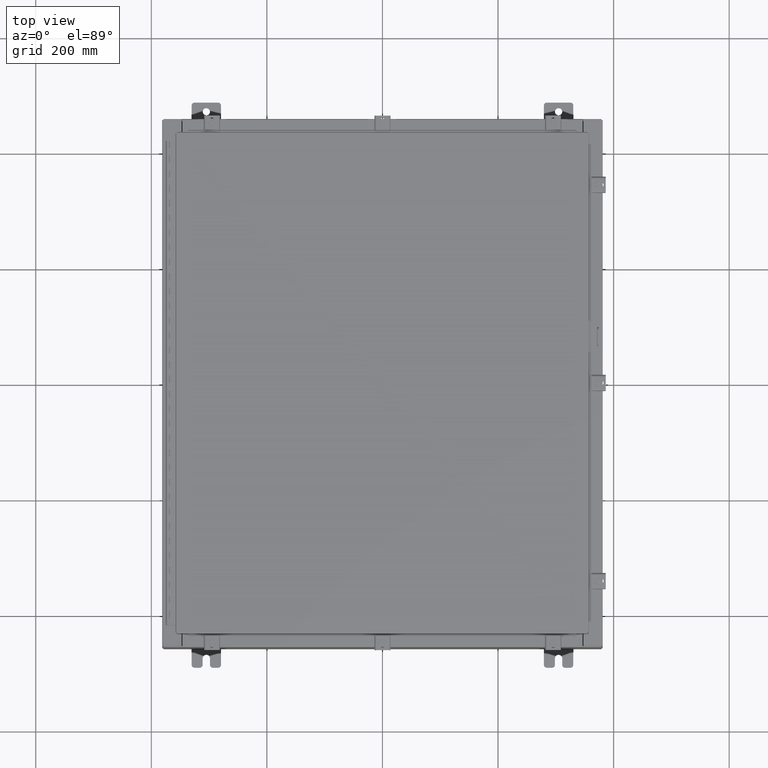
[diagram: clean part render]
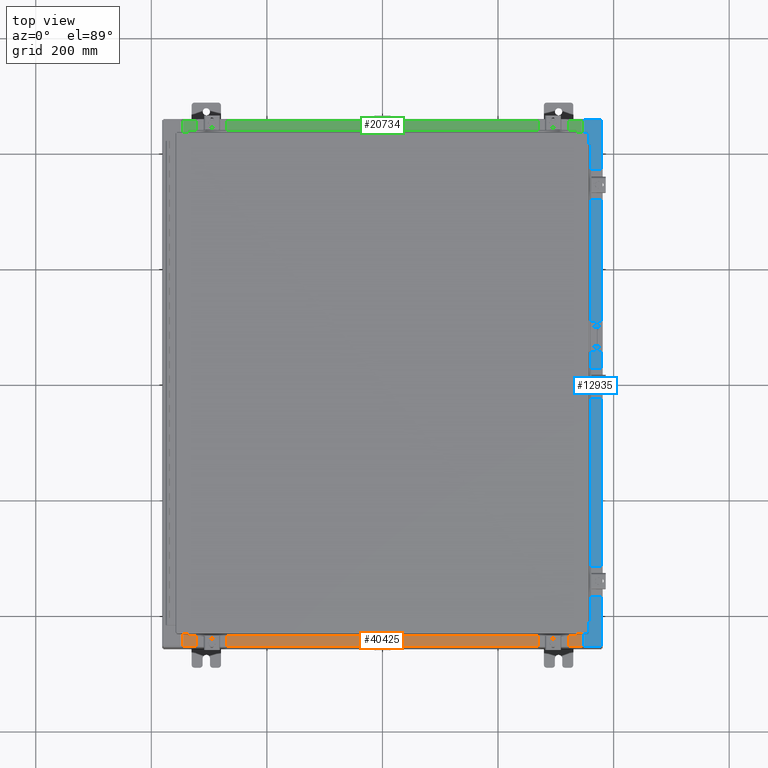
[diagram: same view with three faces highlighted in distinct colors, each labeled with its STEP entity id]
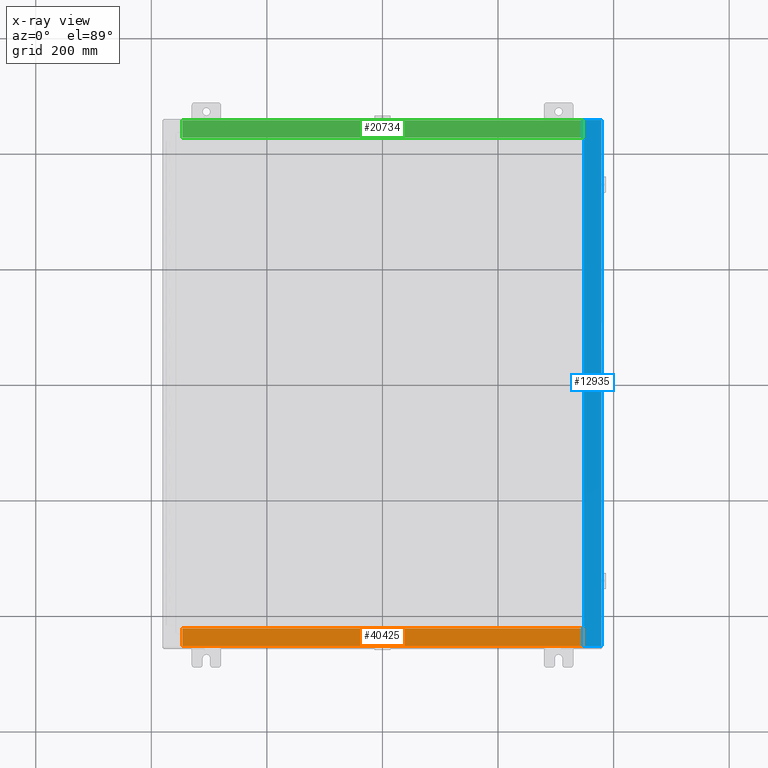
[diagram: x-ray of the same camera — body ghosted, the three highlighted faces saturated]
A machine part, top view with three faces highlighted in distinct colors.
The next image is the same camera in x-ray (body ghosted, the three faces saturated) — at least one of them is partly hidden behind the body in this view.
Their STEP definitions:

[orange] entity #40425 — the highlighted planar face has unit normal (-0, -0, 1).
#757 = DIRECTION ( 'NONE',  ( -0.0000000000000000000, -1.000000000000000000, 3.566381192773190000E-015 ) ) ;
#1760 = CARTESIAN_POINT ( 'NONE',  ( -13.63719999999999800, -0.07469999999999973900, 4.000000000000000000 ) ) ;
#2917 = DIRECTION ( 'NONE',  ( -1.000000000000000000, 2.003232330437526000E-017, -7.144290108027600900E-032 ) ) ;
#3444 = EDGE_CURVE ( 'NONE', #27526, #3976, #25503, .T. ) ;
#3976 = VERTEX_POINT ( 'NONE', #36598 ) ;
#4018 = VERTEX_POINT ( 'NONE', #16685 ) ;
#5298 = VECTOR ( 'NONE', #14962, 39.37007874015748100 ) ;
#6133 = CARTESIAN_POINT ( 'NONE',  ( -1.756834753793995900E-018, -0.08770000000000000000, 4.000000000000000900 ) ) ;
#6949 = PLANE ( 'NONE',  #31343 ) ;
#8020 = LINE ( 'NONE', #36622, #24688 ) ;
#11457 = ORIENTED_EDGE ( 'NONE', *, *, #13467, .F. ) ;
#12029 = ORIENTED_EDGE ( 'NONE', *, *, #20580, .T. ) ;
#12905 = CARTESIAN_POINT ( 'NONE',  ( -13.63719999999999800, -1.287299999999999200, 4.000000000000004400 ) ) ;
#13467 = EDGE_CURVE ( 'NONE', #24205, #4018, #39776, .T. ) ;
#14962 = DIRECTION ( 'NONE',  ( -0.0000000000000000000, 1.000000000000000000, -3.566381192773190000E-015 ) ) ;
#16685 = CARTESIAN_POINT ( 'NONE',  ( -13.63719999999999800, -0.08770000000000000000, 4.000000000000000000 ) ) ;
#17326 = CARTESIAN_POINT ( 'NONE',  ( 13.63720000000000400, -1.300299999999999800, 4.000000000000004400 ) ) ;
#17849 = LINE ( 'NONE', #6133, #18888 ) ;
#18888 = VECTOR ( 'NONE', #2917, 39.37007874015748100 ) ;
#20327 = DIRECTION ( 'NONE',  ( 0.0000000000000000000, -1.000000000000000000, 3.566381192773190000E-015 ) ) ;
#20580 = EDGE_CURVE ( 'NONE', #27526, #4018, #17849, .T. ) ;
#24205 = VERTEX_POINT ( 'NONE', #12905 ) ;
#24222 = EDGE_LOOP ( 'NONE', ( #11457, #29889, #33480, #12029 ) ) ;
#24688 = VECTOR ( 'NONE', #26537, 39.37007874015748100 ) ;
#25503 = LINE ( 'NONE', #17326, #33344 ) ;
#26537 = DIRECTION ( 'NONE',  ( -1.000000000000000000, 0.0000000000000000000, 0.0000000000000000000 ) ) ;
#26739 = FACE_OUTER_BOUND ( 'NONE', #24222, .T. ) ;
#27345 = CARTESIAN_POINT ( 'NONE',  ( 13.63720000000000400, -0.08769999999999965300, 4.000000000000000000 ) ) ;
#27526 = VERTEX_POINT ( 'NONE', #27345 ) ;
#29889 = ORIENTED_EDGE ( 'NONE', *, *, #39906, .F. ) ;
#30283 = CARTESIAN_POINT ( 'NONE',  ( 0.0000000000000000000, 1.425992975200418500E-014, 4.000000000000000000 ) ) ;
#31343 = AXIS2_PLACEMENT_3D ( 'NONE', #30283, #40364, #20327 ) ;
#33344 = VECTOR ( 'NONE', #757, 39.37007874015748100 ) ;
#33480 = ORIENTED_EDGE ( 'NONE', *, *, #3444, .F. ) ;
#36598 = CARTESIAN_POINT ( 'NONE',  ( 13.63720000000000400, -1.287299999999999900, 4.000000000000004400 ) ) ;
#36622 = CARTESIAN_POINT ( 'NONE',  ( 13.63720000000000400, -1.287299999999999900, 4.000000000000003600 ) ) ;
#39776 = LINE ( 'NONE', #1760, #5298 ) ;
#39906 = EDGE_CURVE ( 'NONE', #3976, #24205, #8020, .T. ) ;
#40364 = DIRECTION ( 'NONE',  ( 0.0000000000000000000, 3.566381192773190000E-015, 1.000000000000000000 ) ) ;
#40425 = ADVANCED_FACE ( 'NONE', ( #26739 ), #6949, .T. ) ;

[blue] entity #12935 — the highlighted planar face has unit normal (-0, 0, -1).
#95 = CARTESIAN_POINT ( 'NONE',  ( 13.75005000000002800, 16.63110000000000000, 7.925300000000008900 ) ) ;
#437 = VECTOR ( 'NONE', #28163, 39.37007874015748100 ) ;
#526 = EDGE_CURVE ( 'NONE', #36722, #5574, #17862, .T. ) ;
#595 = LINE ( 'NONE', #7188, #8413 ) ;
#808 = VECTOR ( 'NONE', #6674, 39.37007874015748100 ) ;
#1398 = EDGE_CURVE ( 'NONE', #34269, #27681, #29849, .T. ) ;
#2035 = VERTEX_POINT ( 'NONE', #33932 ) ;
#2236 = EDGE_CURVE ( 'NONE', #9814, #36722, #25068, .T. ) ;
#3556 = CARTESIAN_POINT ( 'NONE',  ( 13.71270000000003000, -16.59375000000000000, 7.925300000000008900 ) ) ;
#3616 = CARTESIAN_POINT ( 'NONE',  ( 13.75005000000002800, 16.63110000000000000, 7.925300000000006200 ) ) ;
#3906 = CARTESIAN_POINT ( 'NONE',  ( 13.75005000000002800, 16.61242500000000200, 7.925300000000008900 ) ) ;
#4672 = ORIENTED_EDGE ( 'NONE', *, *, #42286, .T. ) ;
#5574 = VERTEX_POINT ( 'NONE', #41687 ) ;
#5994 = LINE ( 'NONE', #42104, #32610 ) ;
#6396 = FACE_OUTER_BOUND ( 'NONE', #39962, .T. ) ;
#6674 = DIRECTION ( 'NONE',  ( -1.000000000000000000, 4.340572780399910900E-014, 0.0000000000000000000 ) ) ;
#6902 = CARTESIAN_POINT ( 'NONE',  ( 13.69970000000002800, -17.92530000000000000, 7.925300000000007100 ) ) ;
#7188 = CARTESIAN_POINT ( 'NONE',  ( 13.69970000000002800, -2.954887266783073000E-030, 7.925300000000007100 ) ) ;
#7276 = ORIENTED_EDGE ( 'NONE', *, *, #2236, .F. ) ;
#7283 = DIRECTION ( 'NONE',  ( 1.000000000000000000, 0.0000000000000000000, 0.0000000000000000000 ) ) ;
#8012 = ORIENTED_EDGE ( 'NONE', *, *, #15636, .T. ) ;
#8413 = VECTOR ( 'NONE', #30489, 39.37007874015748100 ) ;
#8672 = DIRECTION ( 'NONE',  ( 1.000000000000000000, 0.0000000000000000000, 0.0000000000000000000 ) ) ;
#9291 = LINE ( 'NONE', #24783, #437 ) ;
#9721 = ORIENTED_EDGE ( 'NONE', *, *, #13758, .T. ) ;
#9814 = VERTEX_POINT ( 'NONE', #36656 ) ;
#10733 = ORIENTED_EDGE ( 'NONE', *, *, #1398, .F. ) ;
#10853 = AXIS2_PLACEMENT_3D ( 'NONE', #3906, #27212, #7283 ) ;
#11527 = EDGE_CURVE ( 'NONE', #37334, #27681, #30438, .T. ) ;
#12603 = CARTESIAN_POINT ( 'NONE',  ( 13.69970000000002800, 16.63110000000000400, 7.925300000000007100 ) ) ;
#12791 = DIRECTION ( 'NONE',  ( -1.000000000000000000, 0.0000000000000000000, 6.241167087353087800E-015 ) ) ;
#12935 = ADVANCED_FACE ( 'NONE', ( #6396 ), #25248, .F. ) ;
#13758 = EDGE_CURVE ( 'NONE', #34269, #2035, #20373, .T. ) ;
#14457 = CIRCLE ( 'NONE', #10853, 0.01867499999999949400 ) ;
#15027 = DIRECTION ( 'NONE',  ( 6.241167087353086200E-015, 0.0000000000000000000, 1.000000000000000000 ) ) ;
#15153 = VERTEX_POINT ( 'NONE', #17677 ) ;
#15288 = DIRECTION ( 'NONE',  ( -1.000000000000000000, 0.0000000000000000000, 6.241167087353086200E-015 ) ) ;
#15629 = CARTESIAN_POINT ( 'NONE',  ( 13.75005000000002800, 16.59375000000000000, 7.925300000000006200 ) ) ;
#15636 = EDGE_CURVE ( 'NONE', #2035, #24127, #9291, .T. ) ;
#16071 = CARTESIAN_POINT ( 'NONE',  ( 13.69970000000002800, -16.63110000000000400, 7.925300000000008900 ) ) ;
#17677 = CARTESIAN_POINT ( 'NONE',  ( 13.69970000000002800, -16.63110000000000400, 7.925300000000007100 ) ) ;
#17679 = ORIENTED_EDGE ( 'NONE', *, *, #19706, .F. ) ;
#17862 = LINE ( 'NONE', #24590, #24678 ) ;
#18787 = ORIENTED_EDGE ( 'NONE', *, *, #32658, .F. ) ;
#19271 = VECTOR ( 'NONE', #20109, 39.37007874015748100 ) ;
#19323 = EDGE_CURVE ( 'NONE', #27390, #24127, #27395, .T. ) ;
#19379 = LINE ( 'NONE', #16071, #38257 ) ;
#19706 = EDGE_CURVE ( 'NONE', #27973, #24557, #5994, .T. ) ;
#20109 = DIRECTION ( 'NONE',  ( -0.0000000000000000000, 1.000000000000000000, -0.0000000000000000000 ) ) ;
#20373 = LINE ( 'NONE', #30003, #36103 ) ;
#20997 = DIRECTION ( 'NONE',  ( -0.0000000000000000000, -1.000000000000000000, -0.0000000000000000000 ) ) ;
#21540 = VECTOR ( 'NONE', #42541, 39.37007874015748100 ) ;
#24127 = VERTEX_POINT ( 'NONE', #12603 ) ;
#24557 = VERTEX_POINT ( 'NONE', #15629 ) ;
#24590 = CARTESIAN_POINT ( 'NONE',  ( 13.75005000000002800, -16.59375000000000000, 7.925300000000008900 ) ) ;
#24678 = VECTOR ( 'NONE', #27957, 39.37007874015748100 ) ;
#24758 = ORIENTED_EDGE ( 'NONE', *, *, #526, .F. ) ;
#24783 = CARTESIAN_POINT ( 'NONE',  ( 13.69970000000002800, -2.954887266783073000E-030, 7.925300000000007100 ) ) ;
#25068 = CIRCLE ( 'NONE', #29033, 0.01867499999999949400 ) ;
#25080 = CARTESIAN_POINT ( 'NONE',  ( 14.91230000000002700, 17.92530000000000000, 7.925300000000000000 ) ) ;
#25248 = PLANE ( 'NONE',  #28909 ) ;
#25724 = EDGE_CURVE ( 'NONE', #24557, #27390, #14457, .T. ) ;
#25860 = CARTESIAN_POINT ( 'NONE',  ( 4.972393517341156900E-014, -17.92530000000000000, 7.925300000000092400 ) ) ;
#27212 = DIRECTION ( 'NONE',  ( 6.241167087353086200E-015, 0.0000000000000000000, 1.000000000000000000 ) ) ;
#27390 = VERTEX_POINT ( 'NONE', #3616 ) ;
#27395 = LINE ( 'NONE', #95, #808 ) ;
#27681 = VERTEX_POINT ( 'NONE', #28224 ) ;
#27957 = DIRECTION ( 'NONE',  ( -1.000000000000000000, 0.0000000000000000000, 0.0000000000000000000 ) ) ;
#27973 = VERTEX_POINT ( 'NONE', #37582 ) ;
#28163 = DIRECTION ( 'NONE',  ( -2.156899250920150100E-031, -1.000000000000000000, 1.346156861557936900E-045 ) ) ;
#28224 = CARTESIAN_POINT ( 'NONE',  ( 14.91230000000002700, -17.92530000000000000, 7.925300000000000000 ) ) ;
#28502 = ORIENTED_EDGE ( 'NONE', *, *, #29583, .F. ) ;
#28909 = AXIS2_PLACEMENT_3D ( 'NONE', #35211, #35363, #15288 ) ;
#29033 = AXIS2_PLACEMENT_3D ( 'NONE', #35079, #15027, #38445 ) ;
#29243 = LINE ( 'NONE', #3556, #19271 ) ;
#29583 = EDGE_CURVE ( 'NONE', #15153, #9814, #19379, .T. ) ;
#29849 = LINE ( 'NONE', #41050, #30896 ) ;
#30003 = CARTESIAN_POINT ( 'NONE',  ( 4.972393517341156900E-014, 17.92530000000000000, 7.925300000000092400 ) ) ;
#30284 = CARTESIAN_POINT ( 'NONE',  ( 13.75005000000002800, -16.59375000000000000, 7.925300000000006200 ) ) ;
#30438 = LINE ( 'NONE', #25860, #21540 ) ;
#30489 = DIRECTION ( 'NONE',  ( -2.156899250920150100E-031, -1.000000000000000000, 1.346156861557936900E-045 ) ) ;
#30896 = VECTOR ( 'NONE', #20997, 39.37007874015748100 ) ;
#32240 = ORIENTED_EDGE ( 'NONE', *, *, #19323, .F. ) ;
#32610 = VECTOR ( 'NONE', #8672, 39.37007874015748100 ) ;
#32658 = EDGE_CURVE ( 'NONE', #5574, #27973, #29243, .T. ) ;
#33587 = ORIENTED_EDGE ( 'NONE', *, *, #25724, .F. ) ;
#33932 = CARTESIAN_POINT ( 'NONE',  ( 13.69970000000002800, 17.92530000000000000, 7.925300000000007100 ) ) ;
#34269 = VERTEX_POINT ( 'NONE', #25080 ) ;
#35079 = CARTESIAN_POINT ( 'NONE',  ( 13.75005000000002800, -16.61242500000000200, 7.925300000000008900 ) ) ;
#35211 = CARTESIAN_POINT ( 'NONE',  ( 4.972393517341156900E-014, 0.0000000000000000000, 7.925300000000092400 ) ) ;
#35363 = DIRECTION ( 'NONE',  ( -6.241167087353086200E-015, 0.0000000000000000000, -1.000000000000000000 ) ) ;
#36103 = VECTOR ( 'NONE', #12791, 39.37007874015748100 ) ;
#36656 = CARTESIAN_POINT ( 'NONE',  ( 13.75005000000002800, -16.63110000000000000, 7.925300000000006200 ) ) ;
#36722 = VERTEX_POINT ( 'NONE', #30284 ) ;
#37334 = VERTEX_POINT ( 'NONE', #6902 ) ;
#37582 = CARTESIAN_POINT ( 'NONE',  ( 13.71270000000003000, 16.59375000000000000, 7.925300000000008900 ) ) ;
#38257 = VECTOR ( 'NONE', #39486, 39.37007874015748100 ) ;
#38445 = DIRECTION ( 'NONE',  ( 1.000000000000000000, 0.0000000000000000000, 0.0000000000000000000 ) ) ;
#39486 = DIRECTION ( 'NONE',  ( 1.000000000000000000, 4.340572780399910900E-014, 0.0000000000000000000 ) ) ;
#39962 = EDGE_LOOP ( 'NONE', ( #28502, #4672, #40781, #10733, #9721, #8012, #32240, #33587, #17679, #18787, #24758, #7276 ) ) ;
#40781 = ORIENTED_EDGE ( 'NONE', *, *, #11527, .T. ) ;
#41050 = CARTESIAN_POINT ( 'NONE',  ( 14.91230000000002700, -17.92530000000000000, 7.925300000000000000 ) ) ;
#41687 = CARTESIAN_POINT ( 'NONE',  ( 13.71270000000003000, -16.59375000000000000, 7.925300000000008900 ) ) ;
#42104 = CARTESIAN_POINT ( 'NONE',  ( 13.71270000000003000, 16.59375000000000000, 7.925300000000008900 ) ) ;
#42286 = EDGE_CURVE ( 'NONE', #15153, #37334, #595, .T. ) ;
#42541 = DIRECTION ( 'NONE',  ( 1.000000000000000000, 2.717614574405843200E-032, -6.241167087353087800E-015 ) ) ;

[green] entity #20734 — the highlighted planar face has unit normal (0, 0, 1).
#1640 = EDGE_LOOP ( 'NONE', ( #34869, #26170, #10788, #18223 ) ) ;
#3768 = DIRECTION ( 'NONE',  ( 0.0000000000000000000, 3.566381192773190000E-015, 1.000000000000000000 ) ) ;
#3981 = CARTESIAN_POINT ( 'NONE',  ( -1.756834753793995900E-018, -0.08770000000000000000, 4.000000000000000900 ) ) ;
#4743 = CARTESIAN_POINT ( 'NONE',  ( -13.63719999999999800, -0.08770000000000000000, 4.000000000000000000 ) ) ;
#4921 = LINE ( 'NONE', #3981, #12712 ) ;
#6832 = DIRECTION ( 'NONE',  ( -0.0000000000000000000, -1.000000000000000000, 3.566381192773190000E-015 ) ) ;
#7343 = DIRECTION ( 'NONE',  ( -1.000000000000000000, 2.003232330437526000E-017, -7.144290108027600900E-032 ) ) ;
#10168 = CARTESIAN_POINT ( 'NONE',  ( 13.63720000000000400, -1.300299999999999800, 4.000000000000004400 ) ) ;
#10325 = CARTESIAN_POINT ( 'NONE',  ( 0.0000000000000000000, 1.425992975200418500E-014, 4.000000000000000000 ) ) ;
#10788 = ORIENTED_EDGE ( 'NONE', *, *, #42852, .F. ) ;
#12712 = VECTOR ( 'NONE', #7343, 39.37007874015748100 ) ;
#13057 = VECTOR ( 'NONE', #14819, 39.37007874015748100 ) ;
#13403 = VERTEX_POINT ( 'NONE', #34580 ) ;
#14819 = DIRECTION ( 'NONE',  ( -1.000000000000000000, 0.0000000000000000000, 0.0000000000000000000 ) ) ;
#15091 = LINE ( 'NONE', #10168, #39707 ) ;
#16105 = VECTOR ( 'NONE', #38779, 39.37007874015748100 ) ;
#18223 = ORIENTED_EDGE ( 'NONE', *, *, #39442, .T. ) ;
#20734 = ADVANCED_FACE ( 'NONE', ( #21514 ), #40391, .T. ) ;
#21280 = VERTEX_POINT ( 'NONE', #33340 ) ;
#21514 = FACE_OUTER_BOUND ( 'NONE', #1640, .T. ) ;
#22135 = AXIS2_PLACEMENT_3D ( 'NONE', #10325, #3768, #27091 ) ;
#22148 = CARTESIAN_POINT ( 'NONE',  ( 13.63720000000000400, -1.287299999999999900, 4.000000000000004400 ) ) ;
#24775 = CARTESIAN_POINT ( 'NONE',  ( 13.63720000000000400, -1.287299999999999900, 4.000000000000003600 ) ) ;
#26170 = ORIENTED_EDGE ( 'NONE', *, *, #42454, .F. ) ;
#27091 = DIRECTION ( 'NONE',  ( 0.0000000000000000000, -1.000000000000000000, 3.566381192773190000E-015 ) ) ;
#28734 = LINE ( 'NONE', #24775, #13057 ) ;
#31159 = VERTEX_POINT ( 'NONE', #22148 ) ;
#32037 = CARTESIAN_POINT ( 'NONE',  ( -13.63719999999999800, -0.07469999999999973900, 4.000000000000000000 ) ) ;
#33340 = CARTESIAN_POINT ( 'NONE',  ( 13.63720000000000400, -0.08769999999999965300, 4.000000000000000000 ) ) ;
#34580 = CARTESIAN_POINT ( 'NONE',  ( -13.63719999999999800, -1.287299999999999200, 4.000000000000004400 ) ) ;
#34869 = ORIENTED_EDGE ( 'NONE', *, *, #43234, .F. ) ;
#35457 = VERTEX_POINT ( 'NONE', #4743 ) ;
#38779 = DIRECTION ( 'NONE',  ( -0.0000000000000000000, 1.000000000000000000, -3.566381192773190000E-015 ) ) ;
#39442 = EDGE_CURVE ( 'NONE', #21280, #35457, #4921, .T. ) ;
#39707 = VECTOR ( 'NONE', #6832, 39.37007874015748100 ) ;
#40391 = PLANE ( 'NONE',  #22135 ) ;
#42454 = EDGE_CURVE ( 'NONE', #31159, #13403, #28734, .T. ) ;
#42822 = LINE ( 'NONE', #32037, #16105 ) ;
#42852 = EDGE_CURVE ( 'NONE', #21280, #31159, #15091, .T. ) ;
#43234 = EDGE_CURVE ( 'NONE', #13403, #35457, #42822, .T. ) ;